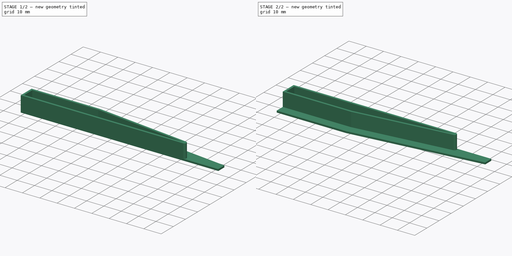
[diagram: build sequence overview — one tinted view per stage of 2, left to right]
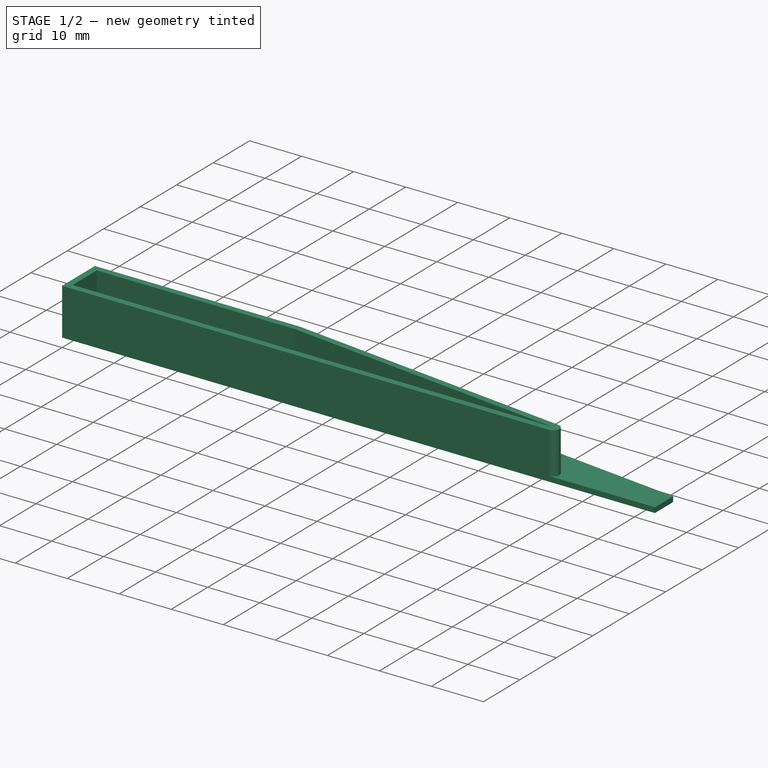
[diagram: stage 1 of 2 — iso view after this stage's code; geometry added in this stage tinted green]
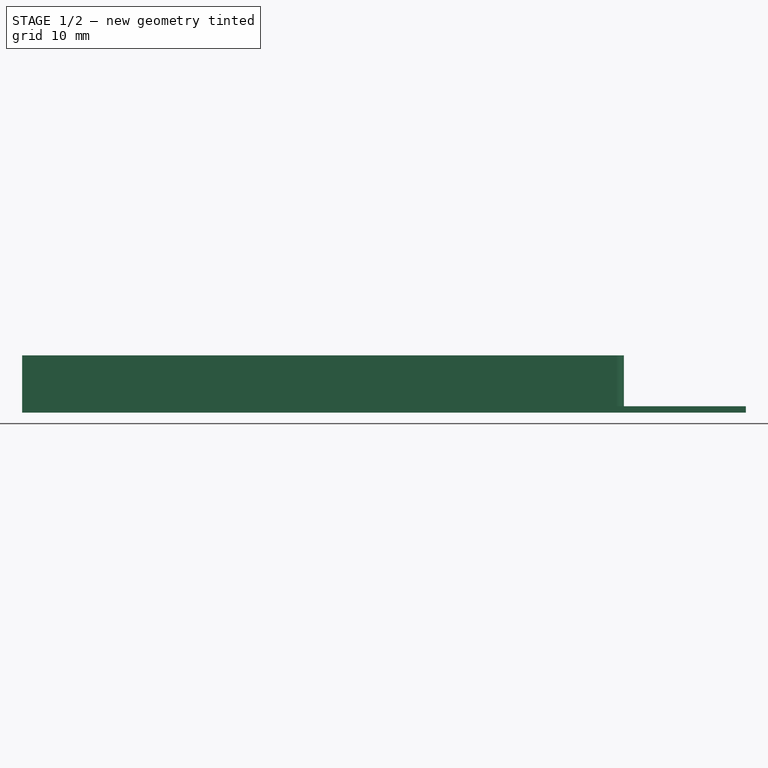
[diagram: stage 1 of 2 — front view after this stage's code; geometry added in this stage tinted green]
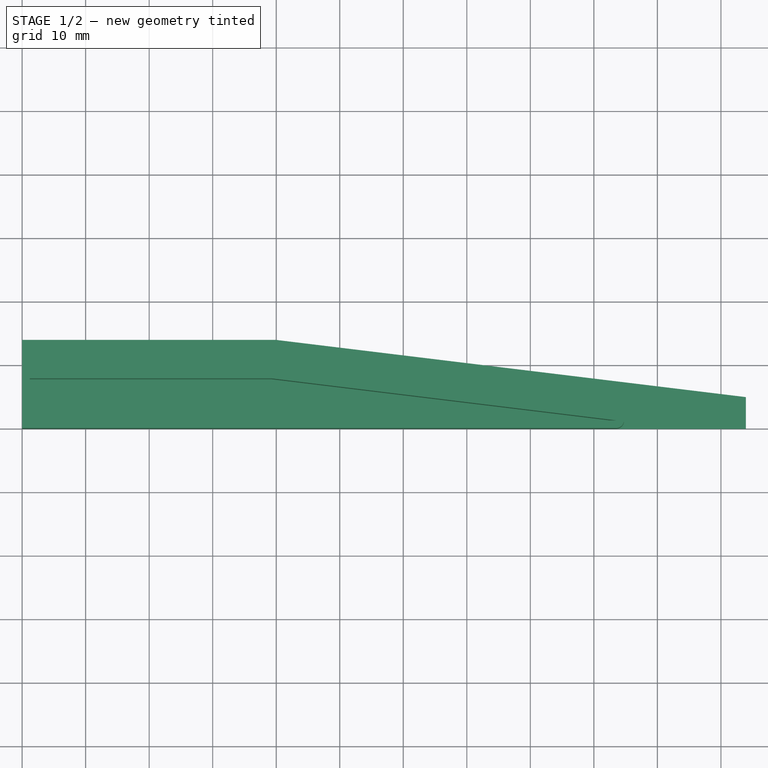
[diagram: stage 1 of 2 — top view after this stage's code; geometry added in this stage tinted green]
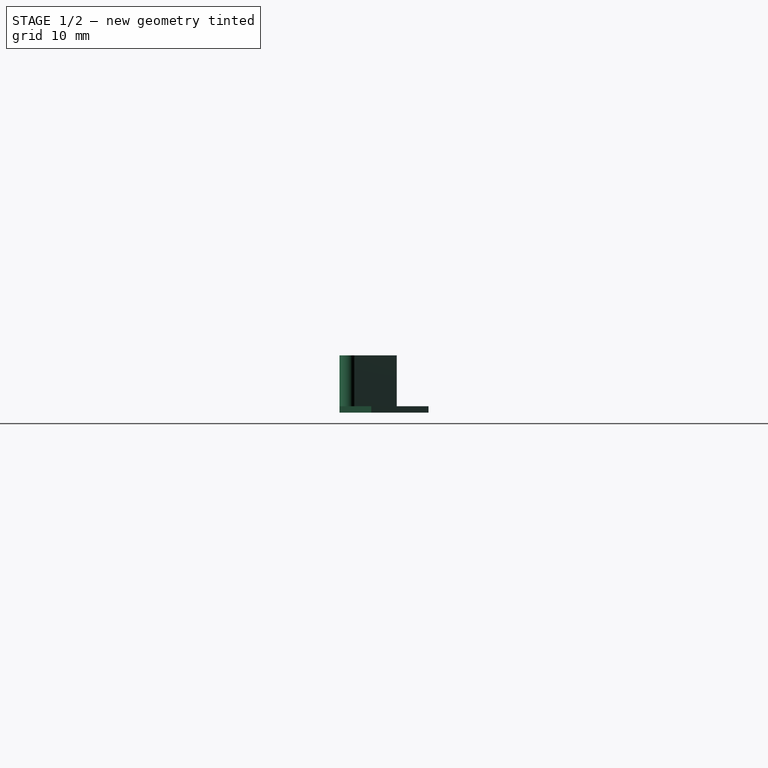
[diagram: stage 1 of 2 — right view after this stage's code; geometry added in this stage tinted green]
FCSTD DOCUMENT  (FreeCAD 0.21R33771 (Git))
Label: EEI-ramp-support
License: Creative Commons Attribution-NonCommercial-ShareAlike 4.0
LicenseURL: https://creativecommons.org/licenses/by-nc-sa/4.0/
objects: Sketcher::SketchObject×2, PartDesign::Pad×2, PartDesign::Chamfer×1, PartDesign::Body×1, Part::Mirroring×1
note: 10 computed .brp shape members not serialized (recipe doc carries the construction recipe); baked Part::Feature solids carry a one-line shape summary decoded from their .brp

FEATURE [Sketcher::SketchObject] Sketch  label="Sketch-profile"
  FullyConstrained = false
  MapMode = 5
  Support = -> [XY_Plane]
  sketch-geometry (9):
    g0: LineSegment StartX=-40 StartY=0 StartZ=0 EndX=-40 EndY=14 EndZ=0
    g1: LineSegment StartX=-40 StartY=14 StartZ=0 EndX=0 EndY=14 EndZ=0
    g2: LineSegment StartX=0 StartY=14 StartZ=0 EndX=115 EndY=7e-16 EndZ=0
    g3: LineSegment StartX=115 StartY=7e-16 StartZ=0 EndX=-40 EndY=0 EndZ=0
    g4: LineSegment StartX=0 StartY=14 StartZ=0 EndX=73.9286 EndY=5 EndZ=0
    g5: LineSegment StartX=73.9286 StartY=5 StartZ=0 EndX=73.9286 EndY=0 EndZ=0
    g6: LineSegment StartX=-40 StartY=0 StartZ=0 EndX=73.9286 EndY=0 EndZ=0
    g7: LineSegment StartX=-40 StartY=9 StartZ=0 EndX=0 EndY=9 EndZ=0
    g8: LineSegment StartX=0 StartY=9 StartZ=0 EndX=73.9286 EndY=3e-16 EndZ=0
  constraints (26):
    c: PointOnObject(g0,g-1)
    c: Vertical(g0)
    c: Coincident(g0,g1)
    c: PointOnObject(g1,g-2)
    c: Horizontal(g1)
    c: Coincident(g1,g2)
    c: PointOnObject(g2,g-1)
    c: Coincident(g2,g3)
    c: Coincident(g3,g0)
    c: DistanceY(g1) = 14
    c: DistanceX(g2) = 115
    c: Coincident(g4,g1)
    c: PointOnObject(g4,g2)
    c: Coincident(g5,g4)
    c: Vertical(g5)
    c: Coincident(g6,g0)
    c: Coincident(g6,g5)
    c: PointOnObject(g7,g0)
    c: PointOnObject(g7,g-2)
    c: Horizontal(g7)
    c: DistanceY(g7,g0) = 5
    c: PointOnObject(g8,g5)
    c: Parallel(g8,g4)
    c: PointOnObject(g8,g3)
    c: Coincident(g8,g7)
    c: DistanceX(g1,g1) = 40
FEATURE [PartDesign::Pad] Pad  label="Pad-profile"
  Direction = (0,0,1)
  Length = 1
  Length2 = 10
  Profile = -> Sketch
  ReferenceAxis = -> Sketch [N_Axis]
  Type = 0
FEATURE [Sketcher::SketchObject] Sketch001  label="Sketch-support"
  ExternalGeometry = -> [Pad]
  FullyConstrained = true
  MapMode = 5
  Placement = pos=(0,0,1) rot=(0,0,1;0rad)
  Support = -> [Pad]
  sketch-geometry (12):
    g0: LineSegment StartX=-40 StartY=9 StartZ=0 EndX=-0.608696 EndY=9 EndZ=0
    g1: LineSegment StartX=-0.608696 StartY=9 StartZ=0 EndX=53.6778 EndY=2.39121 EndZ=0
    g2: LineSegment StartX=53.5328 StartY=1.2 StartZ=0 EndX=-0.753712 EndY=7.80879 EndZ=0
    g3: LineSegment StartX=-0.753712 StartY=7.80879 StartZ=0 EndX=-38.8 EndY=7.80879 EndZ=0
    g4: LineSegment StartX=0 StartY=14 StartZ=0 EndX=-1.70435 EndY=-1.5e-15 EndZ=0
    g5: LineSegment StartX=-40 StartY=0 StartZ=0 EndX=-40 EndY=9 EndZ=0
    g6: LineSegment StartX=-38.8 StartY=1.2 StartZ=0 EndX=53.5328 EndY=1.2 EndZ=0
    g7: LineSegment StartX=-40 StartY=0 StartZ=0 EndX=53.5328 EndY=0 EndZ=0
    g8: LineSegment StartX=-38.8 StartY=7.80879 StartZ=0 EndX=-38.8 EndY=1.2 EndZ=0
    g9: LineSegment StartX=-38.8 StartY=1.2 StartZ=0 EndX=-38.8 EndY=0 EndZ=0
    g10: LineSegment StartX=-38.8 StartY=1.2 StartZ=0 EndX=-40 EndY=1.2 EndZ=0
    g11: ArcOfCircle CenterX=53.5328 CenterY=1.2 CenterZ=0 NormalX=0 NormalY=0 NormalZ=1 AngleXU=0 Radius=1.2 StartAngle=4.71239 EndAngle=7.73284
  constraints (33):
    c: PointOnObject(g0,g-3)
    c: Horizontal(g0)
    c: Coincident(g0,g1)
    c: Coincident(g2,g3)
    c: Horizontal(g3)
    c: Parallel(g1,g2)
    c: Parallel(g2,g-4)
    c: DistanceY(g0,g-3) = 5
    c: Coincident(g4,g-4)
    c: PointOnObject(g4,g-1)
    c: Perpendicular(g-4,g4)
    c: PointOnObject(g0,g4)
    c: PointOnObject(g2,g4)
    c: Coincident(g-3,g5)
    c: Horizontal(g6)
    c: Coincident(g5,g7)
    c: Coincident(g2,g6)
    c: Coincident(g5,g0)
    c: Coincident(g8,g3)
    c: Coincident(g8,g6)
    c: Vertical(g8)
    c: Coincident(g9,g6)
    c: PointOnObject(g9,g7)
    c: Vertical(g9)
    c: Coincident(g10,g6)
    c: PointOnObject(g10,g5)
    c: Horizontal(g10)
    c: Equal(g10,g9)
    c: Coincident(g11,g2)
    c: Tangent(g11,g1) = 1.5708
    c: Tangent(g11,g7) = -1.5708
    c: DistanceY(g9,g9) = 1.2
    c: Horizontal(g7)
FEATURE [PartDesign::Pad] Pad001  label="Pad-support"
  BaseFeature = -> Pad
  Direction = (0,0,1)
  Length = 8
  Length2 = 10
  Profile = -> Sketch001
  ReferenceAxis = -> Sketch001 [N_Axis]
  Refine = true
  Type = 0
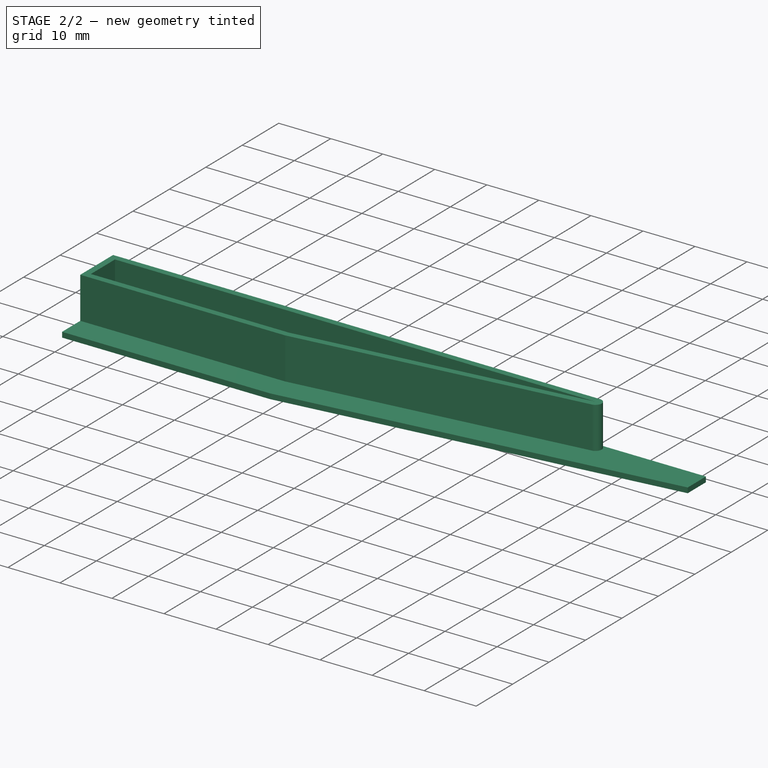
[diagram: stage 2 of 2 — iso view after this stage's code; geometry added in this stage tinted green]
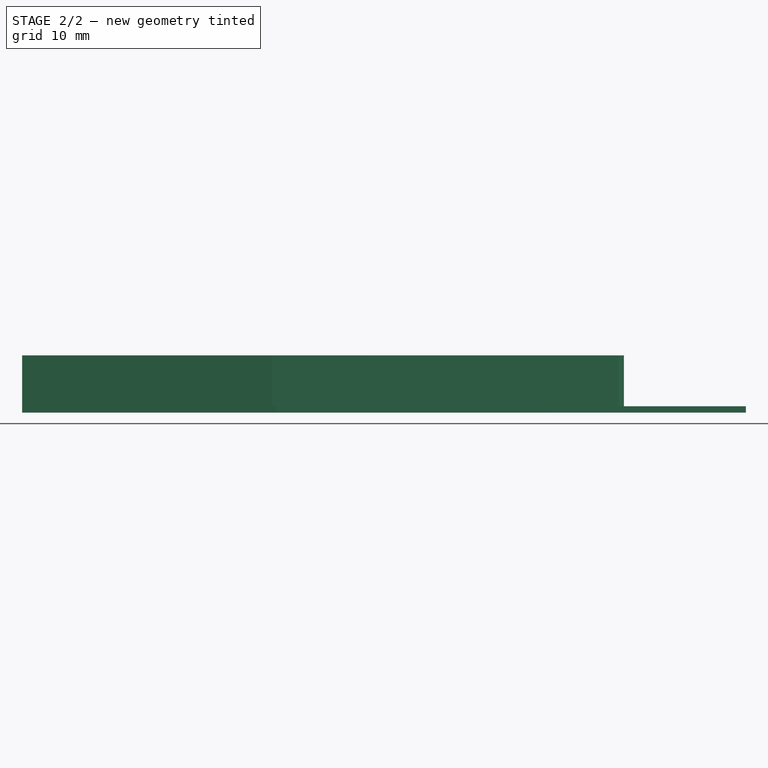
[diagram: stage 2 of 2 — front view after this stage's code; geometry added in this stage tinted green]
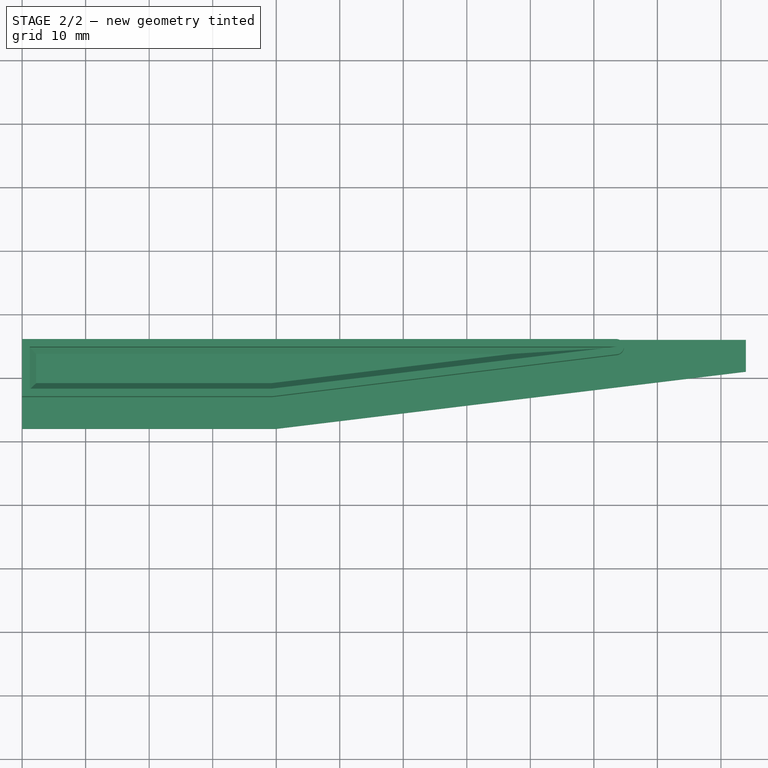
[diagram: stage 2 of 2 — top view after this stage's code; geometry added in this stage tinted green]
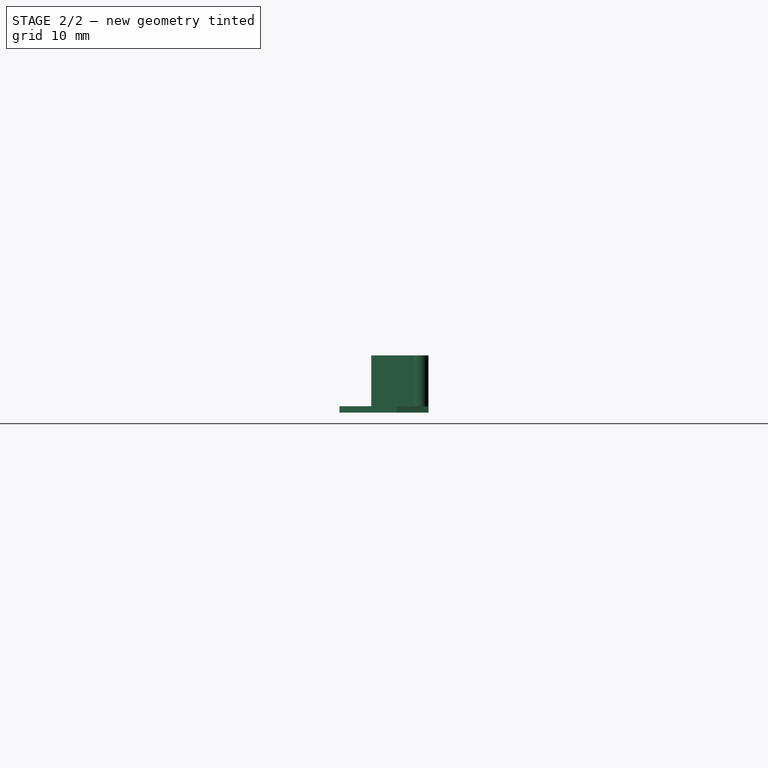
[diagram: stage 2 of 2 — right view after this stage's code; geometry added in this stage tinted green]
FEATURE [PartDesign::Chamfer] Chamfer
  Angle = 45
  Base = -> Pad001 [Edge35,Edge33,Edge38,Edge37]
  BaseFeature = -> Pad001
  ChamferType = 0
  FlipDirection = false
  Size = 1
  Size2 = 1
  SupportTransform = false
  UseAllEdges = false
FEATURE [PartDesign::Body] Body  label="Body-ramp-support"
  Group = -> [Sketch,Pad,Sketch001,Pad001,Chamfer]
  Origin = -> Origin
  Tip = -> Chamfer
FEATURE [Part::Mirroring] Part__Mirroring  label="Mirror-ramp-support"
  Base = (0,0,0)
  Normal = (1,0,0)
  Placement = pos=(0,-4,0) rot=(0,0,1;3.14159rad)
  Source = -> Body
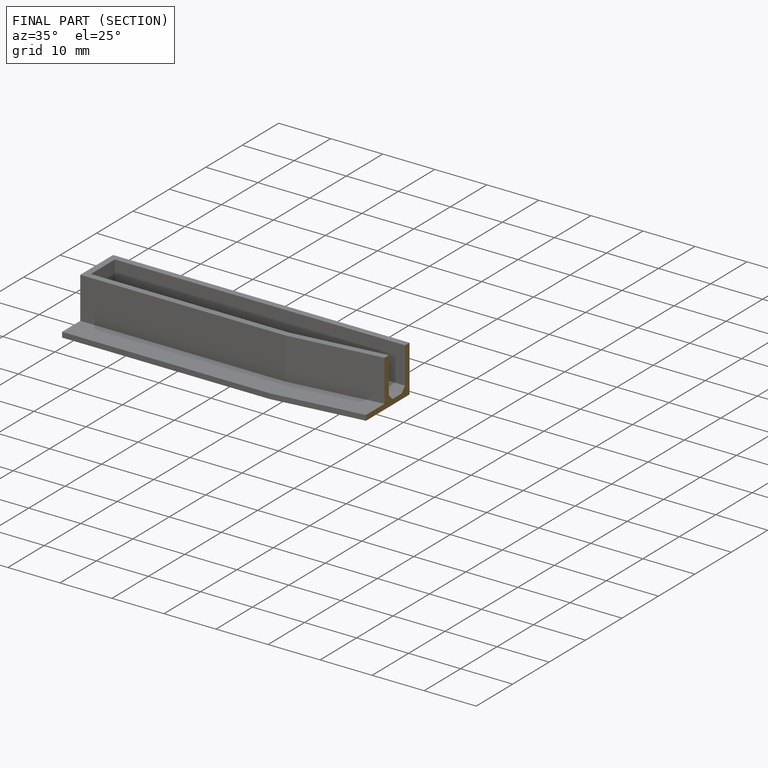
[diagram: finished part — half-section view (interior)]
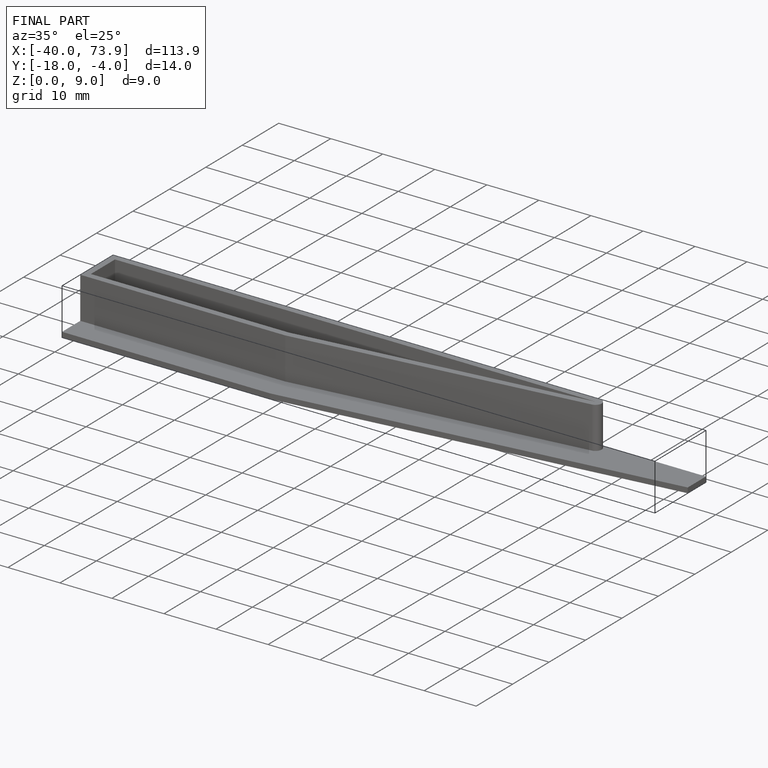
[diagram: finished part — iso view with bounding-box wireframe]
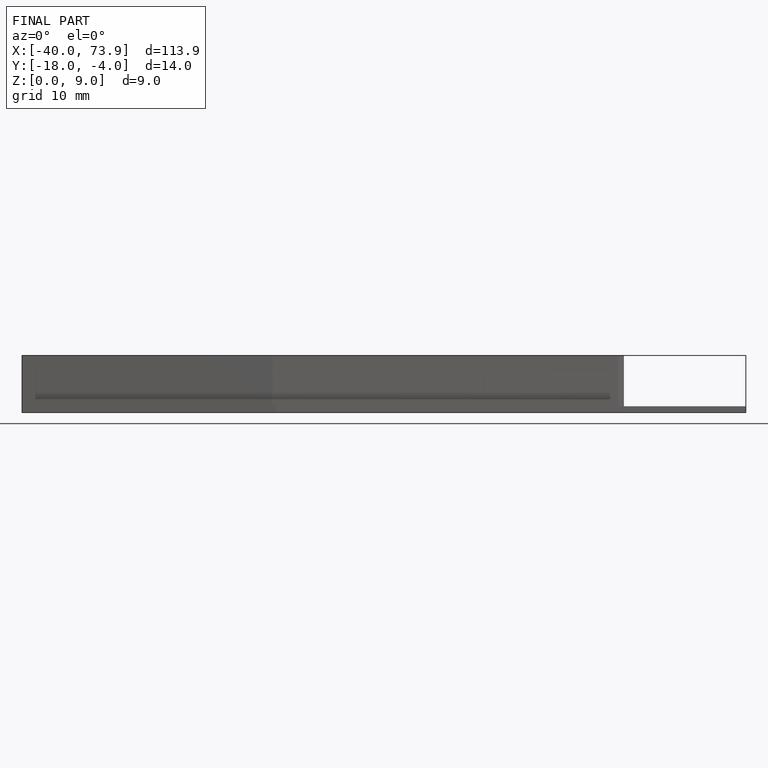
[diagram: finished part — front view with bounding-box wireframe]
